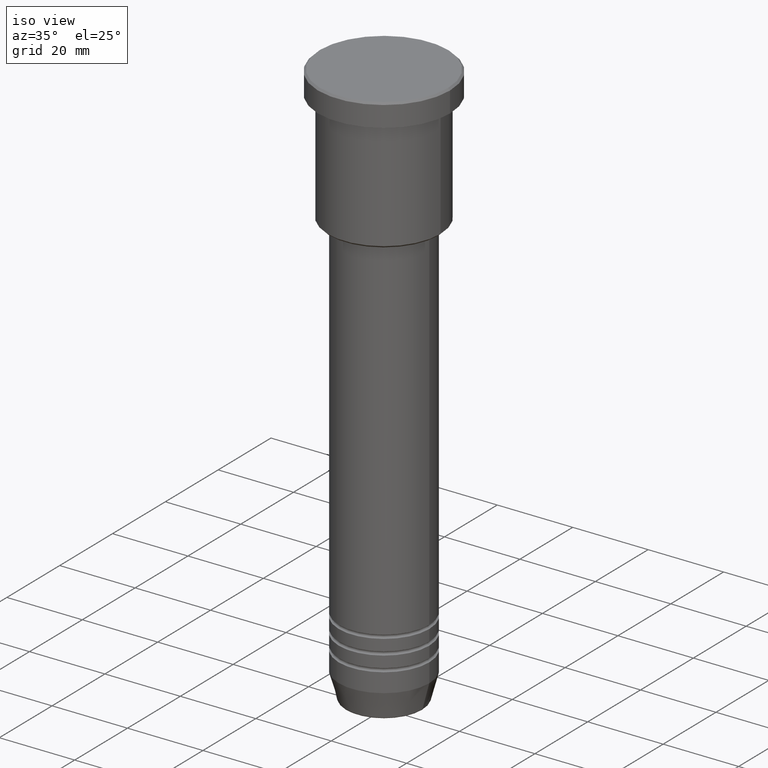
[diagram: clean part render]
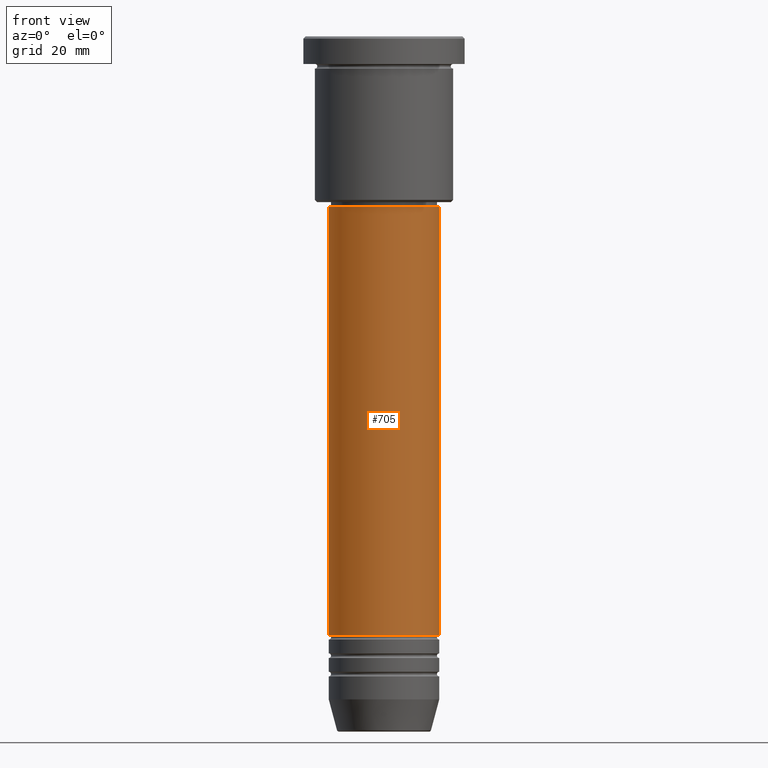
[diagram: tour spotlight — one face highlighted and labeled with its STEP entity id]
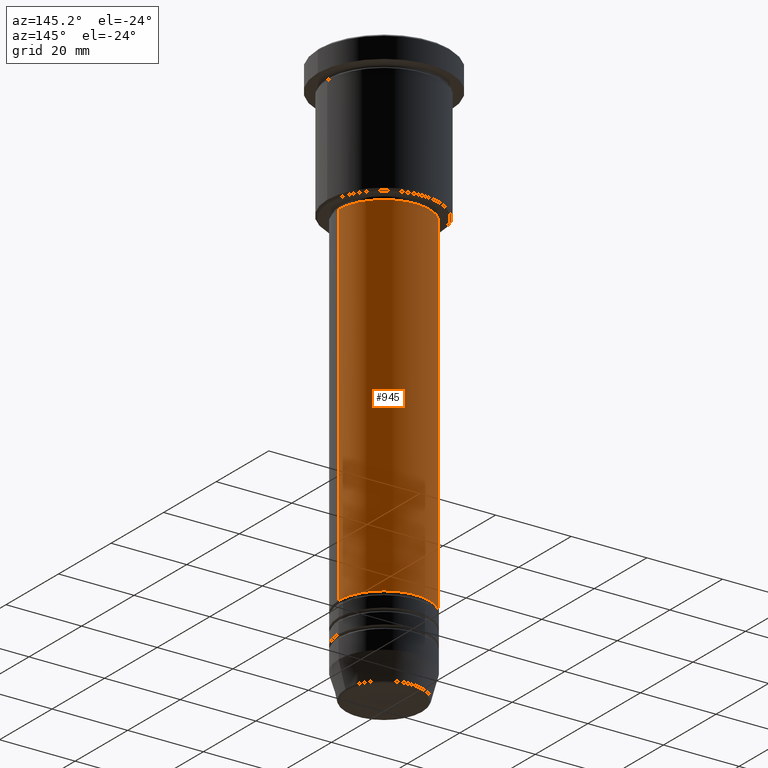
[diagram: tour spotlight — one face highlighted and labeled with its STEP entity id]
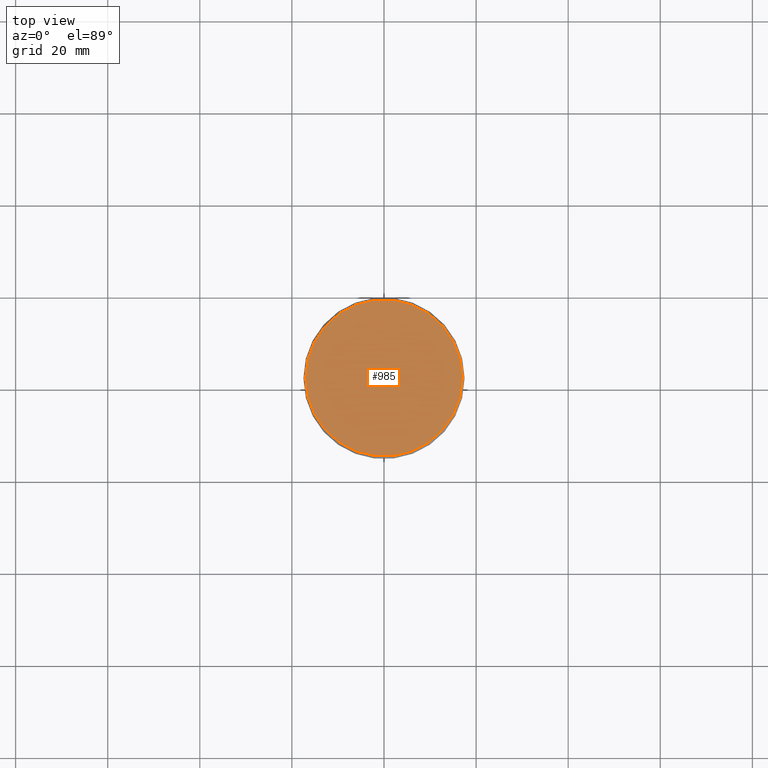
[diagram: tour spotlight — one face highlighted and labeled with its STEP entity id]
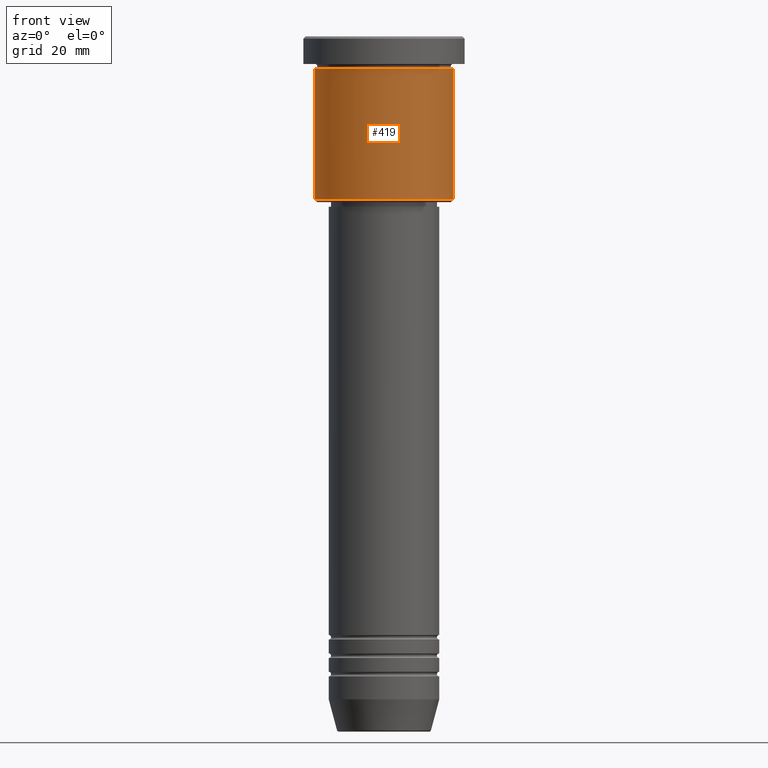
[diagram: tour spotlight — one face highlighted and labeled with its STEP entity id]
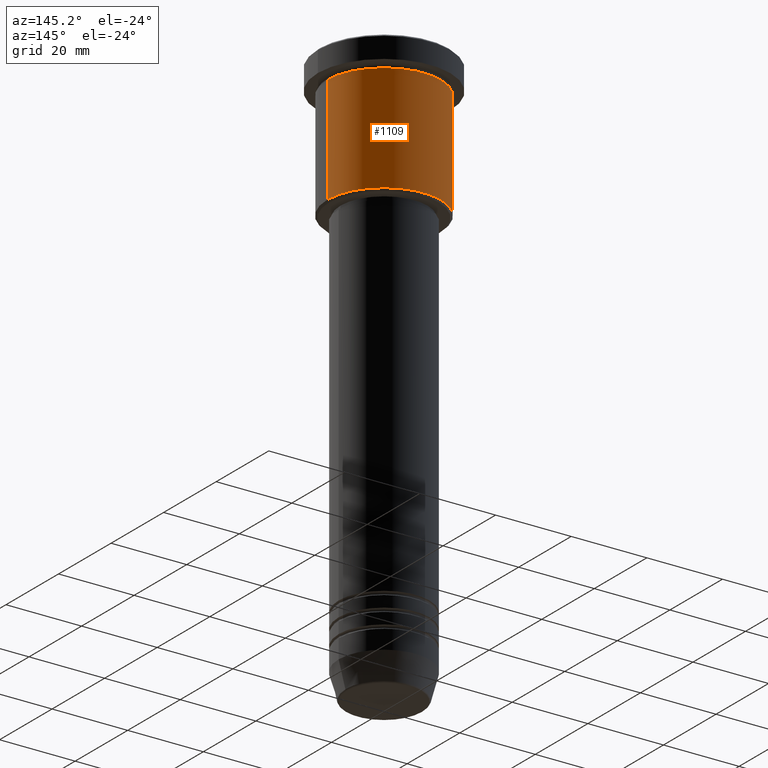
[diagram: tour spotlight — one face highlighted and labeled with its STEP entity id]
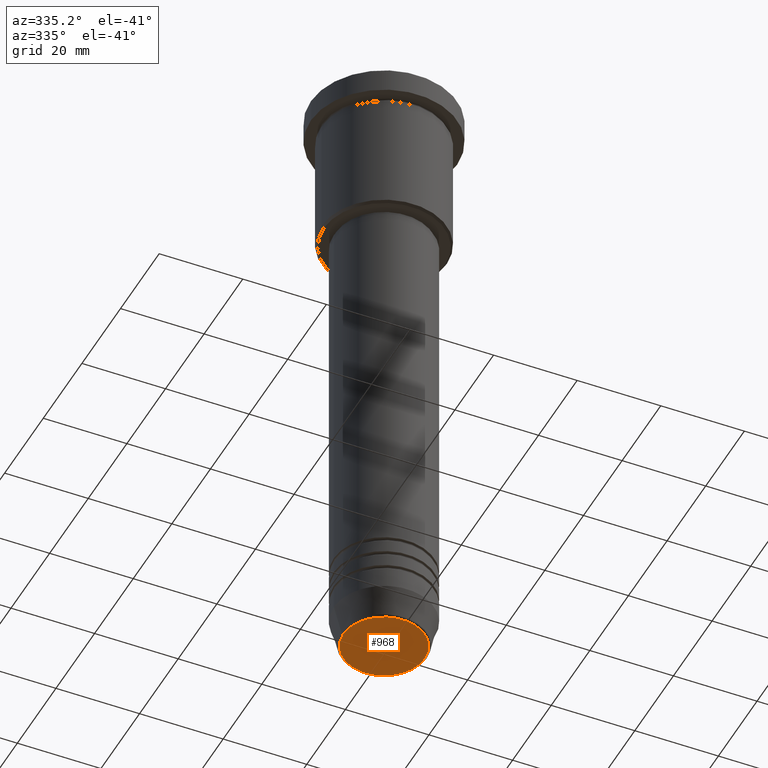
[diagram: tour spotlight — one face highlighted and labeled with its STEP entity id]
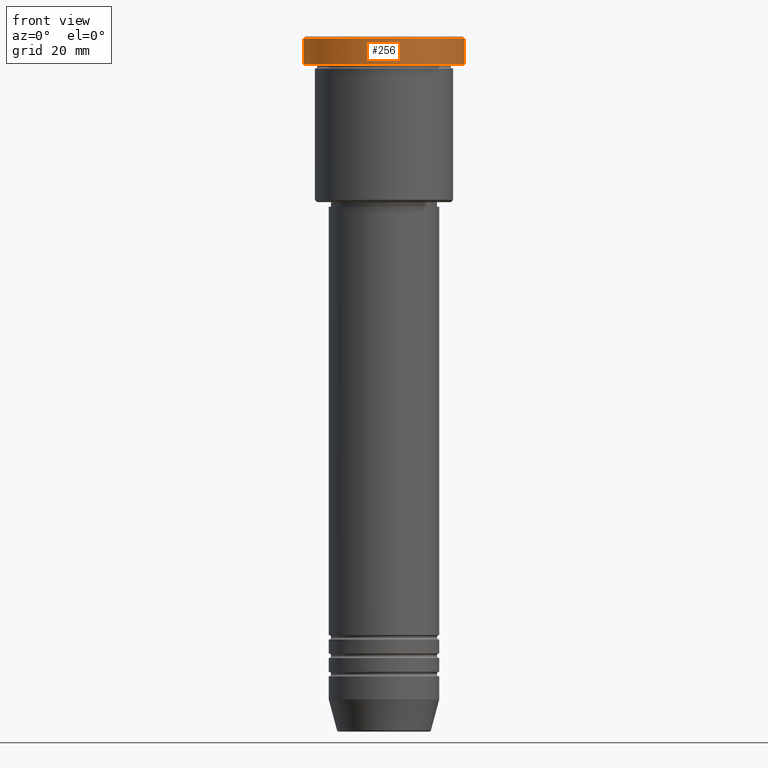
[diagram: tour spotlight — one face highlighted and labeled with its STEP entity id]
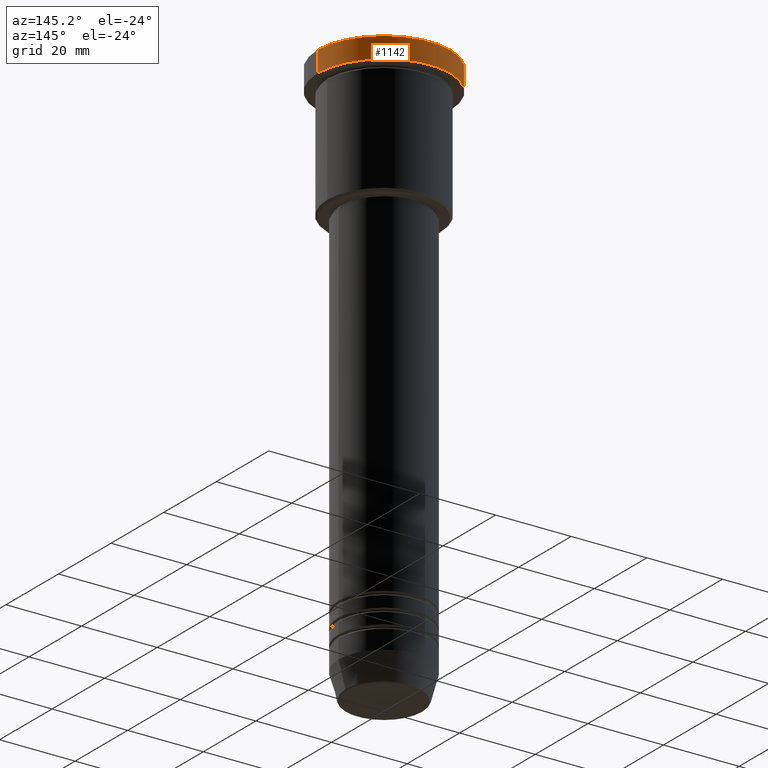
[diagram: tour spotlight — one face highlighted and labeled with its STEP entity id]
A machine part: a face-by-face anatomy tour. The part has 43 B-rep faces; the first image is the clean iso view, then the 8 largest visible faces are spotlighted one at a time (largest first), each with its STEP entity span.

Face 1 — front view, entity #705. In plain terms, the highlighted cylindrical surface (partial cylindrical patch) has radius 12 mm, axis along (-0, -0, 1).
Definition (entity closure, byte-faithful):
#3 = EDGE_CURVE ( 'NONE', #365, #441, #1036, .T. ) ;
#6 = AXIS2_PLACEMENT_3D ( 'NONE', #916, #828, #10 ) ;
#10 = DIRECTION ( 'NONE',  ( 1.000000000000000000, 0.000000000000000000, 0.000000000000000000 ) ) ;
#11 = CARTESIAN_POINT ( 'NONE',  ( 0.000000000000000000, 0.000000000000000000, 0.000000000000000000 ) ) ;
#16 = CARTESIAN_POINT ( 'NONE',  ( -12.00000000000000000, 1.469576158976823947E-15, 0.000000000000000000 ) ) ;
#38 = LINE ( 'NONE', #50, #1117 ) ;
#50 = CARTESIAN_POINT ( 'NONE',  ( 12.00000000000000000, 0.000000000000000000, 0.000000000000000000 ) ) ;
#110 = CARTESIAN_POINT ( 'NONE',  ( 12.00000000000000000, 0.000000000000000000, -129.9999999999998863 ) ) ;
#136 = CARTESIAN_POINT ( 'NONE',  ( -12.00000000000000000, 1.469576158976823947E-15, -37.00000000000000000 ) ) ;
#150 = AXIS2_PLACEMENT_3D ( 'NONE', #11, #381, #749 ) ;
#157 = VERTEX_POINT ( 'NONE', #648 ) ;
#199 = CARTESIAN_POINT ( 'NONE',  ( 0.000000000000000000, 0.000000000000000000, -129.9999999999998863 ) ) ;
#330 = ORIENTED_EDGE ( 'NONE', *, *, #649, .T. ) ;
#355 = EDGE_CURVE ( 'NONE', #573, #441, #38, .T. ) ;
#365 = VERTEX_POINT ( 'NONE', #136 ) ;
#381 = DIRECTION ( 'NONE',  ( -0.000000000000000000, -0.000000000000000000, 1.000000000000000000 ) ) ;
#401 = ORIENTED_EDGE ( 'NONE', *, *, #3, .F. ) ;
#412 = CIRCLE ( 'NONE', #795, 12.00000000000000000 ) ;
#441 = VERTEX_POINT ( 'NONE', #621 ) ;
#454 = DIRECTION ( 'NONE',  ( -0.000000000000000000, -0.000000000000000000, 1.000000000000000000 ) ) ;
#558 = FACE_OUTER_BOUND ( 'NONE', #748, .T. ) ;
#573 = VERTEX_POINT ( 'NONE', #110 ) ;
#588 = VECTOR ( 'NONE', #454, 1000.000000000000000 ) ;
#592 = ORIENTED_EDGE ( 'NONE', *, *, #355, .T. ) ;
#618 = EDGE_CURVE ( 'NONE', #157, #365, #835, .T. ) ;
#621 = CARTESIAN_POINT ( 'NONE',  ( 12.00000000000000000, 0.000000000000000000, -37.00000000000000000 ) ) ;
#648 = CARTESIAN_POINT ( 'NONE',  ( -12.00000000000000000, 1.469576158976823947E-15, -129.9999999999998863 ) ) ;
#649 = EDGE_CURVE ( 'NONE', #157, #573, #412, .T. ) ;
#688 = DIRECTION ( 'NONE',  ( -0.000000000000000000, -0.000000000000000000, 1.000000000000000000 ) ) ;
#705 = ADVANCED_FACE ( 'NONE', ( #558 ), #917, .T. ) ;
#707 = ORIENTED_EDGE ( 'NONE', *, *, #618, .F. ) ;
#748 = EDGE_LOOP ( 'NONE', ( #707, #330, #592, #401 ) ) ;
#749 = DIRECTION ( 'NONE',  ( 1.000000000000000000, 0.000000000000000000, 0.000000000000000000 ) ) ;
#795 = AXIS2_PLACEMENT_3D ( 'NONE', #199, #930, #1007 ) ;
#828 = DIRECTION ( 'NONE',  ( -0.000000000000000000, -0.000000000000000000, 1.000000000000000000 ) ) ;
#835 = LINE ( 'NONE', #16, #588 ) ;
#916 = CARTESIAN_POINT ( 'NONE',  ( 0.000000000000000000, 0.000000000000000000, -37.00000000000000000 ) ) ;
#917 = CYLINDRICAL_SURFACE ( 'NONE', #150, 12.00000000000000000 ) ;
#930 = DIRECTION ( 'NONE',  ( -0.000000000000000000, -0.000000000000000000, 1.000000000000000000 ) ) ;
#1007 = DIRECTION ( 'NONE',  ( 1.000000000000000000, 0.000000000000000000, 0.000000000000000000 ) ) ;
#1036 = CIRCLE ( 'NONE', #6, 12.00000000000000000 ) ;
#1117 = VECTOR ( 'NONE', #688, 1000.000000000000000 ) ;

Face 2 — auxiliary view, entity #945. In plain terms, the highlighted cylindrical surface (partial cylindrical patch) has radius 12 mm, axis along (-0, -0, 1).
Definition (entity closure, byte-faithful):
#16 = CARTESIAN_POINT ( 'NONE',  ( -12.00000000000000000, 1.469576158976823947E-15, 0.000000000000000000 ) ) ;
#38 = LINE ( 'NONE', #50, #1117 ) ;
#50 = CARTESIAN_POINT ( 'NONE',  ( 12.00000000000000000, 0.000000000000000000, 0.000000000000000000 ) ) ;
#72 = DIRECTION ( 'NONE',  ( 1.000000000000000000, 0.000000000000000000, 0.000000000000000000 ) ) ;
#110 = CARTESIAN_POINT ( 'NONE',  ( 12.00000000000000000, 0.000000000000000000, -129.9999999999998863 ) ) ;
#136 = CARTESIAN_POINT ( 'NONE',  ( -12.00000000000000000, 1.469576158976823947E-15, -37.00000000000000000 ) ) ;
#156 = FACE_OUTER_BOUND ( 'NONE', #248, .T. ) ;
#157 = VERTEX_POINT ( 'NONE', #648 ) ;
#175 = CARTESIAN_POINT ( 'NONE',  ( 0.000000000000000000, 0.000000000000000000, 0.000000000000000000 ) ) ;
#248 = EDGE_LOOP ( 'NONE', ( #1149, #647, #524, #804 ) ) ;
#251 = DIRECTION ( 'NONE',  ( -0.000000000000000000, -0.000000000000000000, 1.000000000000000000 ) ) ;
#253 = CARTESIAN_POINT ( 'NONE',  ( 0.000000000000000000, 0.000000000000000000, -129.9999999999998863 ) ) ;
#355 = EDGE_CURVE ( 'NONE', #573, #441, #38, .T. ) ;
#365 = VERTEX_POINT ( 'NONE', #136 ) ;
#366 = DIRECTION ( 'NONE',  ( -0.000000000000000000, -0.000000000000000000, 1.000000000000000000 ) ) ;
#441 = VERTEX_POINT ( 'NONE', #621 ) ;
#454 = DIRECTION ( 'NONE',  ( -0.000000000000000000, -0.000000000000000000, 1.000000000000000000 ) ) ;
#468 = EDGE_CURVE ( 'NONE', #573, #157, #607, .T. ) ;
#521 = CYLINDRICAL_SURFACE ( 'NONE', #718, 12.00000000000000000 ) ;
#524 = ORIENTED_EDGE ( 'NONE', *, *, #541, .F. ) ;
#533 = DIRECTION ( 'NONE',  ( 1.000000000000000000, 0.000000000000000000, 0.000000000000000000 ) ) ;
#541 = EDGE_CURVE ( 'NONE', #441, #365, #1158, .T. ) ;
#573 = VERTEX_POINT ( 'NONE', #110 ) ;
#588 = VECTOR ( 'NONE', #454, 1000.000000000000000 ) ;
#607 = CIRCLE ( 'NONE', #759, 12.00000000000000000 ) ;
#616 = DIRECTION ( 'NONE',  ( 1.000000000000000000, 0.000000000000000000, 0.000000000000000000 ) ) ;
#618 = EDGE_CURVE ( 'NONE', #157, #365, #835, .T. ) ;
#621 = CARTESIAN_POINT ( 'NONE',  ( 12.00000000000000000, 0.000000000000000000, -37.00000000000000000 ) ) ;
#647 = ORIENTED_EDGE ( 'NONE', *, *, #618, .T. ) ;
#648 = CARTESIAN_POINT ( 'NONE',  ( -12.00000000000000000, 1.469576158976823947E-15, -129.9999999999998863 ) ) ;
#665 = AXIS2_PLACEMENT_3D ( 'NONE', #1176, #366, #616 ) ;
#688 = DIRECTION ( 'NONE',  ( -0.000000000000000000, -0.000000000000000000, 1.000000000000000000 ) ) ;
#704 = DIRECTION ( 'NONE',  ( -0.000000000000000000, -0.000000000000000000, 1.000000000000000000 ) ) ;
#718 = AXIS2_PLACEMENT_3D ( 'NONE', #175, #251, #533 ) ;
#759 = AXIS2_PLACEMENT_3D ( 'NONE', #253, #704, #72 ) ;
#804 = ORIENTED_EDGE ( 'NONE', *, *, #355, .F. ) ;
#835 = LINE ( 'NONE', #16, #588 ) ;
#945 = ADVANCED_FACE ( 'NONE', ( #156 ), #521, .T. ) ;
#1117 = VECTOR ( 'NONE', #688, 1000.000000000000000 ) ;
#1149 = ORIENTED_EDGE ( 'NONE', *, *, #468, .T. ) ;
#1158 = CIRCLE ( 'NONE', #665, 12.00000000000000000 ) ;
#1176 = CARTESIAN_POINT ( 'NONE',  ( 0.000000000000000000, 0.000000000000000000, -37.00000000000000000 ) ) ;

Face 3 — top view, entity #985. In plain terms, the highlighted planar face has unit normal (0, -0, 1).
Definition (entity closure, byte-faithful):
#41 = CIRCLE ( 'NONE', #793, 17.00000000000004263 ) ;
#55 = EDGE_CURVE ( 'NONE', #162, #1079, #41, .T. ) ;
#162 = VERTEX_POINT ( 'NONE', #568 ) ;
#178 = ORIENTED_EDGE ( 'NONE', *, *, #910, .T. ) ;
#184 = EDGE_LOOP ( 'NONE', ( #178, #341 ) ) ;
#341 = ORIENTED_EDGE ( 'NONE', *, *, #55, .T. ) ;
#433 = CARTESIAN_POINT ( 'NONE',  ( 0.000000000000000000, 0.000000000000000000, 0.000000000000000000 ) ) ;
#451 = CARTESIAN_POINT ( 'NONE',  ( 0.000000000000000000, 0.000000000000000000, 0.000000000000000000 ) ) ;
#464 = AXIS2_PLACEMENT_3D ( 'NONE', #433, #801, #813 ) ;
#526 = DIRECTION ( 'NONE',  ( -0.000000000000000000, -0.000000000000000000, 1.000000000000000000 ) ) ;
#536 = DIRECTION ( 'NONE',  ( -0.000000000000000000, -0.000000000000000000, 1.000000000000000000 ) ) ;
#568 = CARTESIAN_POINT ( 'NONE',  ( 17.00000000000004263, 2.112515728529187222E-15, 0.000000000000000000 ) ) ;
#633 = FACE_OUTER_BOUND ( 'NONE', #184, .T. ) ;
#793 = AXIS2_PLACEMENT_3D ( 'NONE', #451, #536, #805 ) ;
#796 = CARTESIAN_POINT ( 'NONE',  ( 0.000000000000000000, 0.000000000000000000, 0.000000000000000000 ) ) ;
#801 = DIRECTION ( 'NONE',  ( 0.000000000000000000, -0.000000000000000000, 1.000000000000000000 ) ) ;
#805 = DIRECTION ( 'NONE',  ( 1.000000000000000000, 0.000000000000000000, 0.000000000000000000 ) ) ;
#813 = DIRECTION ( 'NONE',  ( 1.000000000000000000, 0.000000000000000000, 0.000000000000000000 ) ) ;
#880 = AXIS2_PLACEMENT_3D ( 'NONE', #796, #526, #969 ) ;
#885 = PLANE ( 'NONE',  #464 ) ;
#910 = EDGE_CURVE ( 'NONE', #1079, #162, #958, .T. ) ;
#911 = CARTESIAN_POINT ( 'NONE',  ( -17.00000000000004263, 0.000000000000000000, 0.000000000000000000 ) ) ;
#958 = CIRCLE ( 'NONE', #880, 17.00000000000004263 ) ;
#969 = DIRECTION ( 'NONE',  ( 1.000000000000000000, 0.000000000000000000, 0.000000000000000000 ) ) ;
#985 = ADVANCED_FACE ( 'NONE', ( #633 ), #885, .T. ) ;
#1079 = VERTEX_POINT ( 'NONE', #911 ) ;

Face 4 — front view, entity #419. In plain terms, the highlighted cylindrical surface (partial cylindrical patch) has radius 15 mm, axis along (-0, -0, 1).
Definition (entity closure, byte-faithful):
#59 = ORIENTED_EDGE ( 'NONE', *, *, #223, .T. ) ;
#97 = CARTESIAN_POINT ( 'NONE',  ( 15.00000000000000000, 0.000000000000000000, 0.000000000000000000 ) ) ;
#113 = CARTESIAN_POINT ( 'NONE',  ( -15.00000000000000000, 1.836970198721029589E-15, -35.49999999999997868 ) ) ;
#139 = CARTESIAN_POINT ( 'NONE',  ( 15.00000000000000000, 0.000000000000000000, -35.49999999999997868 ) ) ;
#148 = AXIS2_PLACEMENT_3D ( 'NONE', #296, #1089, #1033 ) ;
#204 = VECTOR ( 'NONE', #409, 1000.000000000000000 ) ;
#223 = EDGE_CURVE ( 'NONE', #744, #345, #761, .T. ) ;
#244 = LINE ( 'NONE', #583, #204 ) ;
#249 = CARTESIAN_POINT ( 'NONE',  ( -15.00000000000000000, 1.836970198721029589E-15, -6.999999999999995559 ) ) ;
#254 = VERTEX_POINT ( 'NONE', #113 ) ;
#296 = CARTESIAN_POINT ( 'NONE',  ( 0.000000000000000000, 0.000000000000000000, -6.999999999999995559 ) ) ;
#321 = EDGE_CURVE ( 'NONE', #254, #540, #244, .T. ) ;
#345 = VERTEX_POINT ( 'NONE', #1138 ) ;
#395 = AXIS2_PLACEMENT_3D ( 'NONE', #1166, #1080, #442 ) ;
#406 = EDGE_LOOP ( 'NONE', ( #891, #538, #59, #770 ) ) ;
#408 = DIRECTION ( 'NONE',  ( -1.000000000000000000, 0.000000000000000000, 0.000000000000000000 ) ) ;
#409 = DIRECTION ( 'NONE',  ( -0.000000000000000000, -0.000000000000000000, 1.000000000000000000 ) ) ;
#419 = ADVANCED_FACE ( 'NONE', ( #422 ), #790, .T. ) ;
#422 = FACE_OUTER_BOUND ( 'NONE', #406, .T. ) ;
#442 = DIRECTION ( 'NONE',  ( 1.000000000000000000, 0.000000000000000000, 0.000000000000000000 ) ) ;
#487 = VECTOR ( 'NONE', #669, 1000.000000000000000 ) ;
#491 = CARTESIAN_POINT ( 'NONE',  ( 0.000000000000000000, 0.000000000000000000, -35.49999999999997868 ) ) ;
#509 = CIRCLE ( 'NONE', #148, 15.00000000000000000 ) ;
#538 = ORIENTED_EDGE ( 'NONE', *, *, #765, .T. ) ;
#540 = VERTEX_POINT ( 'NONE', #249 ) ;
#548 = AXIS2_PLACEMENT_3D ( 'NONE', #491, #940, #408 ) ;
#583 = CARTESIAN_POINT ( 'NONE',  ( -15.00000000000000000, 1.836970198721029589E-15, 0.000000000000000000 ) ) ;
#669 = DIRECTION ( 'NONE',  ( -0.000000000000000000, -0.000000000000000000, 1.000000000000000000 ) ) ;
#744 = VERTEX_POINT ( 'NONE', #139 ) ;
#761 = LINE ( 'NONE', #97, #487 ) ;
#762 = CIRCLE ( 'NONE', #548, 15.00000000000000000 ) ;
#765 = EDGE_CURVE ( 'NONE', #254, #744, #762, .T. ) ;
#770 = ORIENTED_EDGE ( 'NONE', *, *, #1175, .F. ) ;
#790 = CYLINDRICAL_SURFACE ( 'NONE', #395, 15.00000000000000000 ) ;
#891 = ORIENTED_EDGE ( 'NONE', *, *, #321, .F. ) ;
#940 = DIRECTION ( 'NONE',  ( -0.000000000000000000, -0.000000000000000000, 1.000000000000000000 ) ) ;
#1033 = DIRECTION ( 'NONE',  ( 1.000000000000000000, 0.000000000000000000, 0.000000000000000000 ) ) ;
#1080 = DIRECTION ( 'NONE',  ( -0.000000000000000000, -0.000000000000000000, 1.000000000000000000 ) ) ;
#1089 = DIRECTION ( 'NONE',  ( -0.000000000000000000, -0.000000000000000000, 1.000000000000000000 ) ) ;
#1138 = CARTESIAN_POINT ( 'NONE',  ( 15.00000000000000000, 0.000000000000000000, -6.999999999999995559 ) ) ;
#1166 = CARTESIAN_POINT ( 'NONE',  ( 0.000000000000000000, 0.000000000000000000, 0.000000000000000000 ) ) ;
#1175 = EDGE_CURVE ( 'NONE', #540, #345, #509, .T. ) ;

Face 5 — auxiliary view, entity #1109. In plain terms, the highlighted cylindrical surface (partial cylindrical patch) has radius 15 mm, axis along (-0, -0, 1).
Definition (entity closure, byte-faithful):
#82 = DIRECTION ( 'NONE',  ( -0.000000000000000000, -0.000000000000000000, 1.000000000000000000 ) ) ;
#97 = CARTESIAN_POINT ( 'NONE',  ( 15.00000000000000000, 0.000000000000000000, 0.000000000000000000 ) ) ;
#98 = DIRECTION ( 'NONE',  ( 1.000000000000000000, 0.000000000000000000, 0.000000000000000000 ) ) ;
#113 = CARTESIAN_POINT ( 'NONE',  ( -15.00000000000000000, 1.836970198721029589E-15, -35.49999999999997868 ) ) ;
#139 = CARTESIAN_POINT ( 'NONE',  ( 15.00000000000000000, 0.000000000000000000, -35.49999999999997868 ) ) ;
#204 = VECTOR ( 'NONE', #409, 1000.000000000000000 ) ;
#223 = EDGE_CURVE ( 'NONE', #744, #345, #761, .T. ) ;
#244 = LINE ( 'NONE', #583, #204 ) ;
#249 = CARTESIAN_POINT ( 'NONE',  ( -15.00000000000000000, 1.836970198721029589E-15, -6.999999999999995559 ) ) ;
#254 = VERTEX_POINT ( 'NONE', #113 ) ;
#267 = CARTESIAN_POINT ( 'NONE',  ( 0.000000000000000000, 0.000000000000000000, -35.49999999999997868 ) ) ;
#270 = DIRECTION ( 'NONE',  ( -0.000000000000000000, -0.000000000000000000, 1.000000000000000000 ) ) ;
#301 = AXIS2_PLACEMENT_3D ( 'NONE', #570, #747, #98 ) ;
#308 = ORIENTED_EDGE ( 'NONE', *, *, #1027, .T. ) ;
#321 = EDGE_CURVE ( 'NONE', #254, #540, #244, .T. ) ;
#345 = VERTEX_POINT ( 'NONE', #1138 ) ;
#409 = DIRECTION ( 'NONE',  ( -0.000000000000000000, -0.000000000000000000, 1.000000000000000000 ) ) ;
#470 = AXIS2_PLACEMENT_3D ( 'NONE', #803, #270, #987 ) ;
#471 = FACE_OUTER_BOUND ( 'NONE', #808, .T. ) ;
#475 = CYLINDRICAL_SURFACE ( 'NONE', #301, 15.00000000000000000 ) ;
#487 = VECTOR ( 'NONE', #669, 1000.000000000000000 ) ;
#500 = ORIENTED_EDGE ( 'NONE', *, *, #321, .T. ) ;
#506 = EDGE_CURVE ( 'NONE', #345, #540, #780, .T. ) ;
#507 = CIRCLE ( 'NONE', #680, 15.00000000000000000 ) ;
#540 = VERTEX_POINT ( 'NONE', #249 ) ;
#570 = CARTESIAN_POINT ( 'NONE',  ( 0.000000000000000000, 0.000000000000000000, 0.000000000000000000 ) ) ;
#583 = CARTESIAN_POINT ( 'NONE',  ( -15.00000000000000000, 1.836970198721029589E-15, 0.000000000000000000 ) ) ;
#669 = DIRECTION ( 'NONE',  ( -0.000000000000000000, -0.000000000000000000, 1.000000000000000000 ) ) ;
#680 = AXIS2_PLACEMENT_3D ( 'NONE', #267, #82, #1017 ) ;
#744 = VERTEX_POINT ( 'NONE', #139 ) ;
#747 = DIRECTION ( 'NONE',  ( -0.000000000000000000, -0.000000000000000000, 1.000000000000000000 ) ) ;
#761 = LINE ( 'NONE', #97, #487 ) ;
#780 = CIRCLE ( 'NONE', #470, 15.00000000000000000 ) ;
#803 = CARTESIAN_POINT ( 'NONE',  ( 0.000000000000000000, 0.000000000000000000, -6.999999999999995559 ) ) ;
#808 = EDGE_LOOP ( 'NONE', ( #308, #500, #952, #1090 ) ) ;
#952 = ORIENTED_EDGE ( 'NONE', *, *, #506, .F. ) ;
#987 = DIRECTION ( 'NONE',  ( 1.000000000000000000, 0.000000000000000000, 0.000000000000000000 ) ) ;
#1017 = DIRECTION ( 'NONE',  ( -1.000000000000000000, 0.000000000000000000, 0.000000000000000000 ) ) ;
#1027 = EDGE_CURVE ( 'NONE', #744, #254, #507, .T. ) ;
#1090 = ORIENTED_EDGE ( 'NONE', *, *, #223, .F. ) ;
#1109 = ADVANCED_FACE ( 'NONE', ( #471 ), #475, .T. ) ;
#1138 = CARTESIAN_POINT ( 'NONE',  ( 15.00000000000000000, 0.000000000000000000, -6.999999999999995559 ) ) ;

Face 6 — auxiliary view, entity #968. In plain terms, the highlighted planar face has unit normal (0, -0, 1).
Definition (entity closure, byte-faithful):
#66 = CARTESIAN_POINT ( 'NONE',  ( -9.740692158992658278, 1.222463696683474999E-15, -151.0000000000000284 ) ) ;
#121 = DIRECTION ( 'NONE',  ( 1.000000000000000000, 0.000000000000000000, 0.000000000000000000 ) ) ;
#122 = EDGE_LOOP ( 'NONE', ( #899, #990 ) ) ;
#181 = DIRECTION ( 'NONE',  ( 0.000000000000000000, 0.000000000000000000, -1.000000000000000000 ) ) ;
#205 = AXIS2_PLACEMENT_3D ( 'NONE', #667, #181, #645 ) ;
#211 = DIRECTION ( 'NONE',  ( 0.000000000000000000, 0.000000000000000000, -1.000000000000000000 ) ) ;
#216 = CARTESIAN_POINT ( 'NONE',  ( 0.000000000000000000, 0.000000000000000000, -151.0000000000000284 ) ) ;
#221 = AXIS2_PLACEMENT_3D ( 'NONE', #537, #240, #877 ) ;
#240 = DIRECTION ( 'NONE',  ( 0.000000000000000000, -0.000000000000000000, 1.000000000000000000 ) ) ;
#247 = PLANE ( 'NONE',  #221 ) ;
#440 = FACE_OUTER_BOUND ( 'NONE', #122, .T. ) ;
#488 = CIRCLE ( 'NONE', #743, 9.740692158992658278 ) ;
#537 = CARTESIAN_POINT ( 'NONE',  ( 0.000000000000000000, 0.000000000000000000, -151.0000000000000284 ) ) ;
#549 = VERTEX_POINT ( 'NONE', #66 ) ;
#645 = DIRECTION ( 'NONE',  ( 1.000000000000000000, 0.000000000000000000, 0.000000000000000000 ) ) ;
#653 = EDGE_CURVE ( 'NONE', #1029, #549, #1098, .T. ) ;
#667 = CARTESIAN_POINT ( 'NONE',  ( 0.000000000000000000, 0.000000000000000000, -151.0000000000000284 ) ) ;
#743 = AXIS2_PLACEMENT_3D ( 'NONE', #216, #211, #121 ) ;
#838 = EDGE_CURVE ( 'NONE', #549, #1029, #488, .T. ) ;
#877 = DIRECTION ( 'NONE',  ( 1.000000000000000000, 0.000000000000000000, 0.000000000000000000 ) ) ;
#899 = ORIENTED_EDGE ( 'NONE', *, *, #653, .T. ) ;
#968 = ADVANCED_FACE ( 'NONE', ( #440 ), #247, .F. ) ;
#990 = ORIENTED_EDGE ( 'NONE', *, *, #838, .T. ) ;
#1029 = VERTEX_POINT ( 'NONE', #1083 ) ;
#1083 = CARTESIAN_POINT ( 'NONE',  ( 9.740692158992658278, 0.000000000000000000, -151.0000000000000284 ) ) ;
#1098 = CIRCLE ( 'NONE', #205, 9.740692158992658278 ) ;

Face 7 — front view, entity #256. In plain terms, the highlighted cylindrical surface (partial cylindrical patch) has radius 17.5 mm, axis along (-0, -0, 1).
Definition (entity closure, byte-faithful):
#13 = DIRECTION ( 'NONE',  ( -0.000000000000000000, -0.000000000000000000, 1.000000000000000000 ) ) ;
#46 = DIRECTION ( 'NONE',  ( -0.000000000000000000, -0.000000000000000000, 1.000000000000000000 ) ) ;
#80 = CARTESIAN_POINT ( 'NONE',  ( 17.50000000000000000, 0.000000000000000000, -0.4999999999999865663 ) ) ;
#96 = VERTEX_POINT ( 'NONE', #80 ) ;
#214 = EDGE_CURVE ( 'NONE', #689, #96, #554, .T. ) ;
#256 = ADVANCED_FACE ( 'NONE', ( #753 ), #300, .T. ) ;
#300 = CYLINDRICAL_SURFACE ( 'NONE', #720, 17.50000000000000000 ) ;
#331 = DIRECTION ( 'NONE',  ( -0.000000000000000000, -0.000000000000000000, 1.000000000000000000 ) ) ;
#389 = EDGE_CURVE ( 'NONE', #714, #841, #865, .T. ) ;
#391 = CARTESIAN_POINT ( 'NONE',  ( 17.50000000000000000, 0.000000000000000000, -5.999999999999995559 ) ) ;
#458 = EDGE_CURVE ( 'NONE', #714, #689, #1056, .T. ) ;
#481 = CARTESIAN_POINT ( 'NONE',  ( -17.50000000000000000, 2.143131898507868248E-15, -0.4999999999999865663 ) ) ;
#512 = AXIS2_PLACEMENT_3D ( 'NONE', #552, #840, #547 ) ;
#547 = DIRECTION ( 'NONE',  ( 1.000000000000000000, 0.000000000000000000, 0.000000000000000000 ) ) ;
#552 = CARTESIAN_POINT ( 'NONE',  ( 0.000000000000000000, 0.000000000000000000, -0.4999999999999865663 ) ) ;
#554 = LINE ( 'NONE', #657, #683 ) ;
#561 = CARTESIAN_POINT ( 'NONE',  ( -17.50000000000000000, 2.143131898507868248E-15, -5.999999999999995559 ) ) ;
#596 = EDGE_CURVE ( 'NONE', #96, #841, #629, .T. ) ;
#629 = CIRCLE ( 'NONE', #512, 17.50000000000000000 ) ;
#657 = CARTESIAN_POINT ( 'NONE',  ( 17.50000000000000000, 0.000000000000000000, 0.000000000000000000 ) ) ;
#664 = CARTESIAN_POINT ( 'NONE',  ( 0.000000000000000000, 0.000000000000000000, 0.000000000000000000 ) ) ;
#673 = ORIENTED_EDGE ( 'NONE', *, *, #458, .T. ) ;
#683 = VECTOR ( 'NONE', #13, 1000.000000000000000 ) ;
#689 = VERTEX_POINT ( 'NONE', #391 ) ;
#703 = EDGE_LOOP ( 'NONE', ( #957, #673, #727, #986 ) ) ;
#708 = CARTESIAN_POINT ( 'NONE',  ( 0.000000000000000000, 0.000000000000000000, -5.999999999999995559 ) ) ;
#714 = VERTEX_POINT ( 'NONE', #561 ) ;
#720 = AXIS2_PLACEMENT_3D ( 'NONE', #664, #331, #1054 ) ;
#727 = ORIENTED_EDGE ( 'NONE', *, *, #214, .T. ) ;
#753 = FACE_OUTER_BOUND ( 'NONE', #703, .T. ) ;
#787 = CARTESIAN_POINT ( 'NONE',  ( -17.50000000000000000, 2.143131898507868248E-15, 0.000000000000000000 ) ) ;
#809 = DIRECTION ( 'NONE',  ( 1.000000000000000000, 0.000000000000000000, 0.000000000000000000 ) ) ;
#840 = DIRECTION ( 'NONE',  ( 0.000000000000000000, 0.000000000000000000, -1.000000000000000000 ) ) ;
#841 = VERTEX_POINT ( 'NONE', #481 ) ;
#865 = LINE ( 'NONE', #787, #1173 ) ;
#957 = ORIENTED_EDGE ( 'NONE', *, *, #389, .F. ) ;
#986 = ORIENTED_EDGE ( 'NONE', *, *, #596, .T. ) ;
#991 = DIRECTION ( 'NONE',  ( -0.000000000000000000, -0.000000000000000000, 1.000000000000000000 ) ) ;
#1054 = DIRECTION ( 'NONE',  ( 1.000000000000000000, 0.000000000000000000, 0.000000000000000000 ) ) ;
#1056 = CIRCLE ( 'NONE', #1096, 17.50000000000000000 ) ;
#1096 = AXIS2_PLACEMENT_3D ( 'NONE', #708, #991, #809 ) ;
#1173 = VECTOR ( 'NONE', #46, 1000.000000000000000 ) ;

Face 8 — auxiliary view, entity #1142. In plain terms, the highlighted cylindrical surface (partial cylindrical patch) has radius 17.5 mm, axis along (-0, -0, 1).
Definition (entity closure, byte-faithful):
#13 = DIRECTION ( 'NONE',  ( -0.000000000000000000, -0.000000000000000000, 1.000000000000000000 ) ) ;
#26 = CIRCLE ( 'NONE', #1058, 17.50000000000000000 ) ;
#46 = DIRECTION ( 'NONE',  ( -0.000000000000000000, -0.000000000000000000, 1.000000000000000000 ) ) ;
#80 = CARTESIAN_POINT ( 'NONE',  ( 17.50000000000000000, 0.000000000000000000, -0.4999999999999865663 ) ) ;
#90 = EDGE_CURVE ( 'NONE', #689, #714, #719, .T. ) ;
#91 = FACE_OUTER_BOUND ( 'NONE', #230, .T. ) ;
#95 = DIRECTION ( 'NONE',  ( 1.000000000000000000, 0.000000000000000000, 0.000000000000000000 ) ) ;
#96 = VERTEX_POINT ( 'NONE', #80 ) ;
#99 = CARTESIAN_POINT ( 'NONE',  ( 0.000000000000000000, 0.000000000000000000, -0.4999999999999865663 ) ) ;
#107 = DIRECTION ( 'NONE',  ( 1.000000000000000000, 0.000000000000000000, 0.000000000000000000 ) ) ;
#214 = EDGE_CURVE ( 'NONE', #689, #96, #554, .T. ) ;
#230 = EDGE_LOOP ( 'NONE', ( #327, #1057, #636, #498 ) ) ;
#327 = ORIENTED_EDGE ( 'NONE', *, *, #90, .T. ) ;
#354 = DIRECTION ( 'NONE',  ( -0.000000000000000000, -0.000000000000000000, 1.000000000000000000 ) ) ;
#389 = EDGE_CURVE ( 'NONE', #714, #841, #865, .T. ) ;
#391 = CARTESIAN_POINT ( 'NONE',  ( 17.50000000000000000, 0.000000000000000000, -5.999999999999995559 ) ) ;
#393 = AXIS2_PLACEMENT_3D ( 'NONE', #637, #920, #107 ) ;
#481 = CARTESIAN_POINT ( 'NONE',  ( -17.50000000000000000, 2.143131898507868248E-15, -0.4999999999999865663 ) ) ;
#498 = ORIENTED_EDGE ( 'NONE', *, *, #214, .F. ) ;
#544 = AXIS2_PLACEMENT_3D ( 'NONE', #1167, #354, #1172 ) ;
#554 = LINE ( 'NONE', #657, #683 ) ;
#561 = CARTESIAN_POINT ( 'NONE',  ( -17.50000000000000000, 2.143131898507868248E-15, -5.999999999999995559 ) ) ;
#613 = EDGE_CURVE ( 'NONE', #841, #96, #26, .T. ) ;
#636 = ORIENTED_EDGE ( 'NONE', *, *, #613, .T. ) ;
#637 = CARTESIAN_POINT ( 'NONE',  ( 0.000000000000000000, 0.000000000000000000, 0.000000000000000000 ) ) ;
#654 = CYLINDRICAL_SURFACE ( 'NONE', #393, 17.50000000000000000 ) ;
#657 = CARTESIAN_POINT ( 'NONE',  ( 17.50000000000000000, 0.000000000000000000, 0.000000000000000000 ) ) ;
#683 = VECTOR ( 'NONE', #13, 1000.000000000000000 ) ;
#689 = VERTEX_POINT ( 'NONE', #391 ) ;
#714 = VERTEX_POINT ( 'NONE', #561 ) ;
#719 = CIRCLE ( 'NONE', #544, 17.50000000000000000 ) ;
#752 = DIRECTION ( 'NONE',  ( 0.000000000000000000, 0.000000000000000000, -1.000000000000000000 ) ) ;
#787 = CARTESIAN_POINT ( 'NONE',  ( -17.50000000000000000, 2.143131898507868248E-15, 0.000000000000000000 ) ) ;
#841 = VERTEX_POINT ( 'NONE', #481 ) ;
#865 = LINE ( 'NONE', #787, #1173 ) ;
#920 = DIRECTION ( 'NONE',  ( -0.000000000000000000, -0.000000000000000000, 1.000000000000000000 ) ) ;
#1057 = ORIENTED_EDGE ( 'NONE', *, *, #389, .T. ) ;
#1058 = AXIS2_PLACEMENT_3D ( 'NONE', #99, #752, #95 ) ;
#1142 = ADVANCED_FACE ( 'NONE', ( #91 ), #654, .T. ) ;
#1167 = CARTESIAN_POINT ( 'NONE',  ( 0.000000000000000000, 0.000000000000000000, -5.999999999999995559 ) ) ;
#1172 = DIRECTION ( 'NONE',  ( 1.000000000000000000, 0.000000000000000000, 0.000000000000000000 ) ) ;
#1173 = VECTOR ( 'NONE', #46, 1000.000000000000000 ) ;